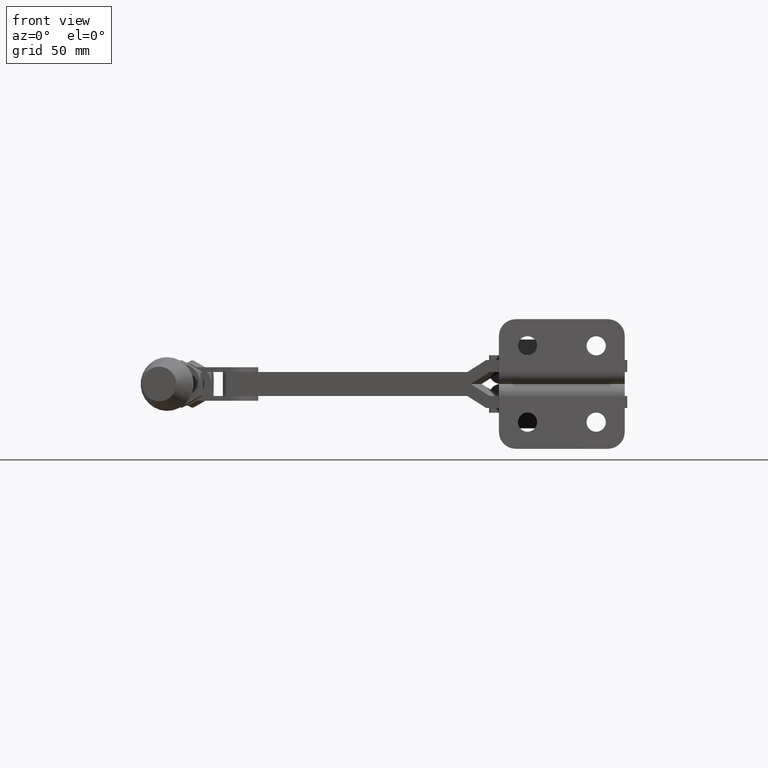
[diagram: clean part render]
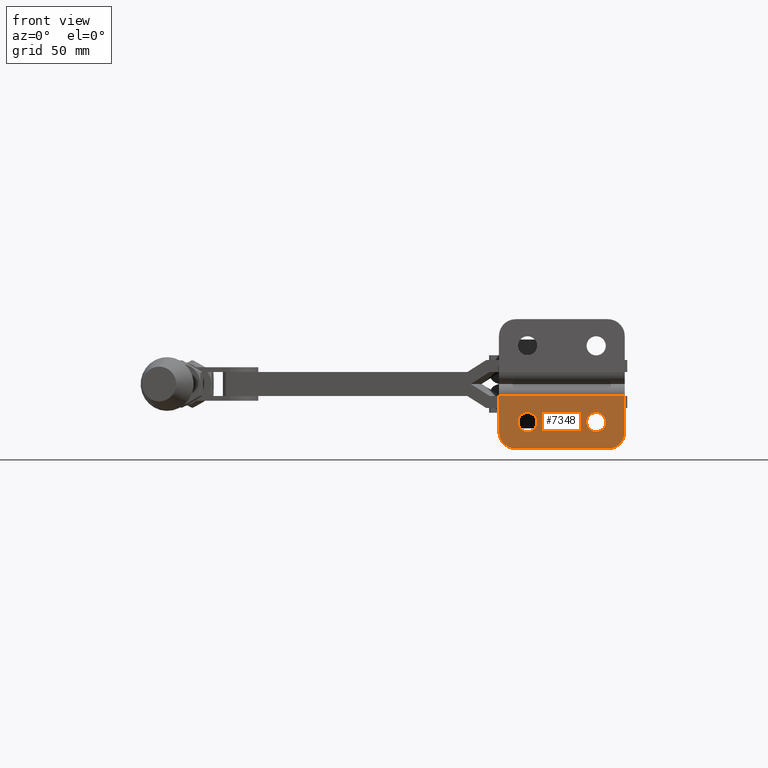
[diagram: same view with one face highlighted and labeled with its STEP entity id]
A machine part, front view. The second image highlights one B-rep face of the part: STEP entity #7348.
In plain terms, the highlighted planar face has unit normal (0, 1, -0).
Its self-contained STEP definition (entity closure, byte-faithful):
#81 = VERTEX_POINT ( 'NONE', #10054 ) ;
#216 = DIRECTION ( 'NONE',  ( 0.0000000000000000000, 1.000000000000000000, -2.523234146875276800E-015 ) ) ;
#257 = VERTEX_POINT ( 'NONE', #5782 ) ;
#323 = DIRECTION ( 'NONE',  ( 0.0000000000000000000, 1.000000000000000000, -2.523234146875276800E-015 ) ) ;
#357 = FACE_BOUND ( 'NONE', #7747, .T. ) ;
#405 = VERTEX_POINT ( 'NONE', #6278 ) ;
#423 = CARTESIAN_POINT ( 'NONE',  ( 52.39999999999999900, 0.0000000000000000000, -4.999999999999893400 ) ) ;
#617 = VERTEX_POINT ( 'NONE', #3266 ) ;
#705 = ORIENTED_EDGE ( 'NONE', *, *, #9983, .T. ) ;
#848 = CIRCLE ( 'NONE', #5516, 4.000000000000007100 ) ;
#876 = CIRCLE ( 'NONE', #2616, 6.999999999999840100 ) ;
#1391 = DIRECTION ( 'NONE',  ( 0.0000000000000000000, 1.000000000000000000, -2.523234146875276800E-015 ) ) ;
#1439 = VECTOR ( 'NONE', #5388, 1000.000000000000000 ) ;
#1513 = VECTOR ( 'NONE', #10212, 1000.000000000000000 ) ;
#1595 = ORIENTED_EDGE ( 'NONE', *, *, #6878, .T. ) ;
#1775 = LINE ( 'NONE', #6150, #1513 ) ;
#1834 = CARTESIAN_POINT ( 'NONE',  ( 52.39999999999999900, 0.0000000000000000000, -4.999999999999893400 ) ) ;
#1986 = CIRCLE ( 'NONE', #10391, 7.000000000000068400 ) ;
#2114 = ORIENTED_EDGE ( 'NONE', *, *, #8569, .F. ) ;
#2265 = EDGE_CURVE ( 'NONE', #405, #2383, #848, .T. ) ;
#2275 = EDGE_CURVE ( 'NONE', #5522, #81, #2804, .T. ) ;
#2304 = FACE_BOUND ( 'NONE', #10469, .T. ) ;
#2383 = VERTEX_POINT ( 'NONE', #10393 ) ;
#2616 = AXIS2_PLACEMENT_3D ( 'NONE', #5178, #216, #6009 ) ;
#2804 = CIRCLE ( 'NONE', #6633, 4.000000000000007100 ) ;
#2832 = DIRECTION ( 'NONE',  ( 0.0000000000000000000, 1.000000000000000000, -2.523234146875276800E-015 ) ) ;
#3012 = CARTESIAN_POINT ( 'NONE',  ( 40.50000000000003600, -4.011942293531787400E-014, -15.90000000000038600 ) ) ;
#3050 = EDGE_LOOP ( 'NONE', ( #8466, #2114, #4319, #8969, #705, #5111 ) ) ;
#3266 = CARTESIAN_POINT ( 'NONE',  ( 45.40000000000011900, -5.235710854766358500E-014, -27.00000000000057900 ) ) ;
#3712 = LINE ( 'NONE', #8181, #9739 ) ;
#4010 = VERTEX_POINT ( 'NONE', #5925 ) ;
#4234 = AXIS2_PLACEMENT_3D ( 'NONE', #7811, #2832, #8611 ) ;
#4319 = ORIENTED_EDGE ( 'NONE', *, *, #7265, .F. ) ;
#4430 = VERTEX_POINT ( 'NONE', #8517 ) ;
#4477 = EDGE_CURVE ( 'NONE', #4010, #257, #1986, .T. ) ;
#4944 = DIRECTION ( 'NONE',  ( 0.0000000000000000000, 1.000000000000000000, -2.523234146875276800E-015 ) ) ;
#5111 = ORIENTED_EDGE ( 'NONE', *, *, #7395, .F. ) ;
#5178 = CARTESIAN_POINT ( 'NONE',  ( 45.40000000000011900, -5.046468293750649200E-014, -20.00000000000038000 ) ) ;
#5388 = DIRECTION ( 'NONE',  ( -1.000000000000000000, 0.0000000000000000000, 0.0000000000000000000 ) ) ;
#5403 = DIRECTION ( 'NONE',  ( 0.0000000000000000000, 2.523234146875277200E-015, 1.000000000000000000 ) ) ;
#5416 = CIRCLE ( 'NONE', #10490, 4.000000000000007100 ) ;
#5473 = VERTEX_POINT ( 'NONE', #8362 ) ;
#5495 = DIRECTION ( 'NONE',  ( 0.0000000000000000000, 2.523234146875276800E-015, 1.000000000000000000 ) ) ;
#5516 = AXIS2_PLACEMENT_3D ( 'NONE', #9563, #9964, #6000 ) ;
#5522 = VERTEX_POINT ( 'NONE', #9971 ) ;
#5782 = CARTESIAN_POINT ( 'NONE',  ( 0.0000000000000000000, -3.784851220312980300E-014, -20.00000000000014900 ) ) ;
#5817 = VECTOR ( 'NONE', #9634, 1000.000000000000000 ) ;
#5925 = CARTESIAN_POINT ( 'NONE',  ( 6.999999999999825900, -6.812732196563274900E-014, -27.00000000000010700 ) ) ;
#6000 = DIRECTION ( 'NONE',  ( 0.0000000000000000000, 2.523234146875276800E-015, 1.000000000000000000 ) ) ;
#6009 = DIRECTION ( 'NONE',  ( 0.0000000000000000000, 2.523234146875276400E-015, 1.000000000000000000 ) ) ;
#6110 = DIRECTION ( 'NONE',  ( 0.0000000000000000000, -2.523234146875276800E-015, -1.000000000000000000 ) ) ;
#6150 = CARTESIAN_POINT ( 'NONE',  ( 0.0000000000000000000, -5.551115123125782700E-014, -27.00000000000057900 ) ) ;
#6235 = CARTESIAN_POINT ( 'NONE',  ( 6.999999999999909400, -5.046468293750576000E-014, -20.00000000000008900 ) ) ;
#6266 = ORIENTED_EDGE ( 'NONE', *, *, #2265, .T. ) ;
#6278 = CARTESIAN_POINT ( 'NONE',  ( 11.90000000000052100, -5.021235952281826500E-014, -19.90000000000010200 ) ) ;
#6285 = EDGE_CURVE ( 'NONE', #5473, #8219, #8293, .T. ) ;
#6375 = CARTESIAN_POINT ( 'NONE',  ( 40.50000000000003600, -4.011942293531787400E-014, -15.90000000000038600 ) ) ;
#6456 = FACE_OUTER_BOUND ( 'NONE', #3050, .T. ) ;
#6497 = AXIS2_PLACEMENT_3D ( 'NONE', #8564, #323, #6110 ) ;
#6633 = AXIS2_PLACEMENT_3D ( 'NONE', #3012, #7427, #5495 ) ;
#6878 = EDGE_CURVE ( 'NONE', #81, #5522, #5416, .T. ) ;
#7225 = DIRECTION ( 'NONE',  ( 0.0000000000000000000, 2.523234146875276800E-015, 1.000000000000000000 ) ) ;
#7265 = EDGE_CURVE ( 'NONE', #5473, #617, #876, .T. ) ;
#7348 = ADVANCED_FACE ( 'NONE', ( #2304, #357, #6456 ), #10170, .F. ) ;
#7395 = EDGE_CURVE ( 'NONE', #257, #4430, #1775, .T. ) ;
#7427 = DIRECTION ( 'NONE',  ( 0.0000000000000000000, 1.000000000000000000, -2.523234146875276800E-015 ) ) ;
#7747 = EDGE_LOOP ( 'NONE', ( #8225, #6266 ) ) ;
#7811 = CARTESIAN_POINT ( 'NONE',  ( 11.90000000000052100, -4.011942293531714200E-014, -15.90000000000009500 ) ) ;
#8181 = CARTESIAN_POINT ( 'NONE',  ( 52.39999999999999900, -5.551115123125782700E-014, -27.00000000000057900 ) ) ;
#8219 = VERTEX_POINT ( 'NONE', #1834 ) ;
#8225 = ORIENTED_EDGE ( 'NONE', *, *, #9315, .T. ) ;
#8293 = LINE ( 'NONE', #8830, #5817 ) ;
#8362 = CARTESIAN_POINT ( 'NONE',  ( 52.39999999999979300, -5.046468293750666300E-014, -20.00000000000044800 ) ) ;
#8466 = ORIENTED_EDGE ( 'NONE', *, *, #4477, .F. ) ;
#8517 = CARTESIAN_POINT ( 'NONE',  ( 0.0000000000000000000, 0.0000000000000000000, -4.999999999999893400 ) ) ;
#8564 = CARTESIAN_POINT ( 'NONE',  ( 52.39999999999999900, -5.551115123125782700E-014, -27.00000000000057900 ) ) ;
#8569 = EDGE_CURVE ( 'NONE', #617, #4010, #3712, .T. ) ;
#8611 = DIRECTION ( 'NONE',  ( 0.0000000000000000000, 2.523234146875276800E-015, 1.000000000000000000 ) ) ;
#8830 = CARTESIAN_POINT ( 'NONE',  ( 52.39999999999999900, -5.551115123125782700E-014, -27.00000000000057900 ) ) ;
#8969 = ORIENTED_EDGE ( 'NONE', *, *, #6285, .T. ) ;
#9315 = EDGE_CURVE ( 'NONE', #2383, #405, #10623, .T. ) ;
#9563 = CARTESIAN_POINT ( 'NONE',  ( 11.90000000000052100, -4.011942293531714200E-014, -15.90000000000009500 ) ) ;
#9634 = DIRECTION ( 'NONE',  ( 0.0000000000000000000, 2.523234146875277200E-015, 1.000000000000000000 ) ) ;
#9739 = VECTOR ( 'NONE', #10603, 1000.000000000000000 ) ;
#9964 = DIRECTION ( 'NONE',  ( 0.0000000000000000000, 1.000000000000000000, -2.523234146875276800E-015 ) ) ;
#9971 = CARTESIAN_POINT ( 'NONE',  ( 40.50000000000003600, -3.002648634781675100E-014, -11.90000000000037900 ) ) ;
#9983 = EDGE_CURVE ( 'NONE', #8219, #4430, #10205, .T. ) ;
#10054 = CARTESIAN_POINT ( 'NONE',  ( 40.50000000000003600, -5.021235952281900300E-014, -19.90000000000039300 ) ) ;
#10092 = ORIENTED_EDGE ( 'NONE', *, *, #2275, .T. ) ;
#10170 = PLANE ( 'NONE',  #6497 ) ;
#10205 = LINE ( 'NONE', #423, #1439 ) ;
#10212 = DIRECTION ( 'NONE',  ( 0.0000000000000000000, 2.523234146875277200E-015, 1.000000000000000000 ) ) ;
#10391 = AXIS2_PLACEMENT_3D ( 'NONE', #6235, #4944, #5403 ) ;
#10393 = CARTESIAN_POINT ( 'NONE',  ( 11.90000000000052100, -3.002648634781601900E-014, -11.90000000000008700 ) ) ;
#10469 = EDGE_LOOP ( 'NONE', ( #10092, #1595 ) ) ;
#10490 = AXIS2_PLACEMENT_3D ( 'NONE', #6375, #1391, #7225 ) ;
#10603 = DIRECTION ( 'NONE',  ( -1.000000000000000000, 0.0000000000000000000, 0.0000000000000000000 ) ) ;
#10623 = CIRCLE ( 'NONE', #4234, 4.000000000000007100 ) ;